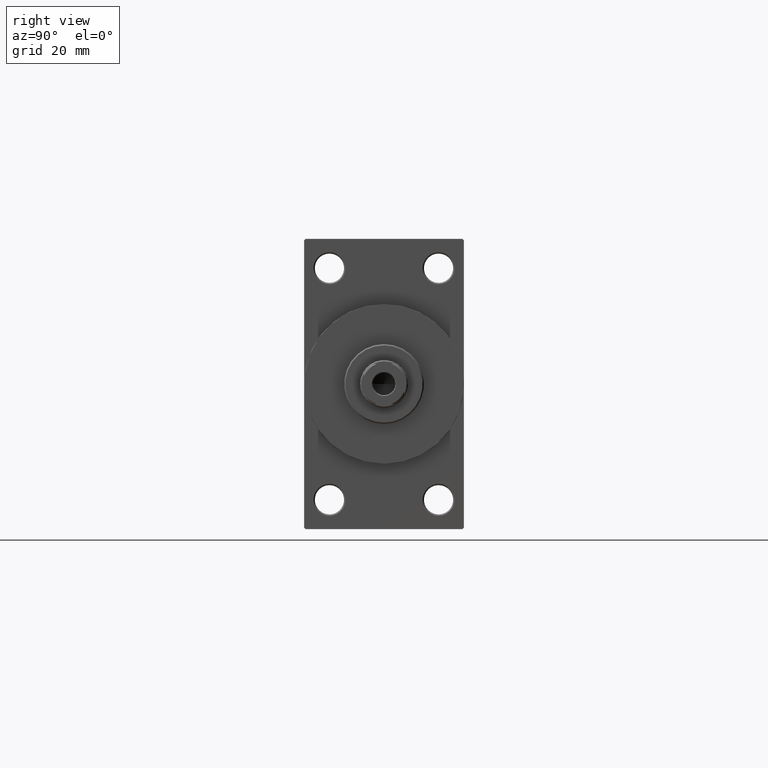
[diagram: clean part render]
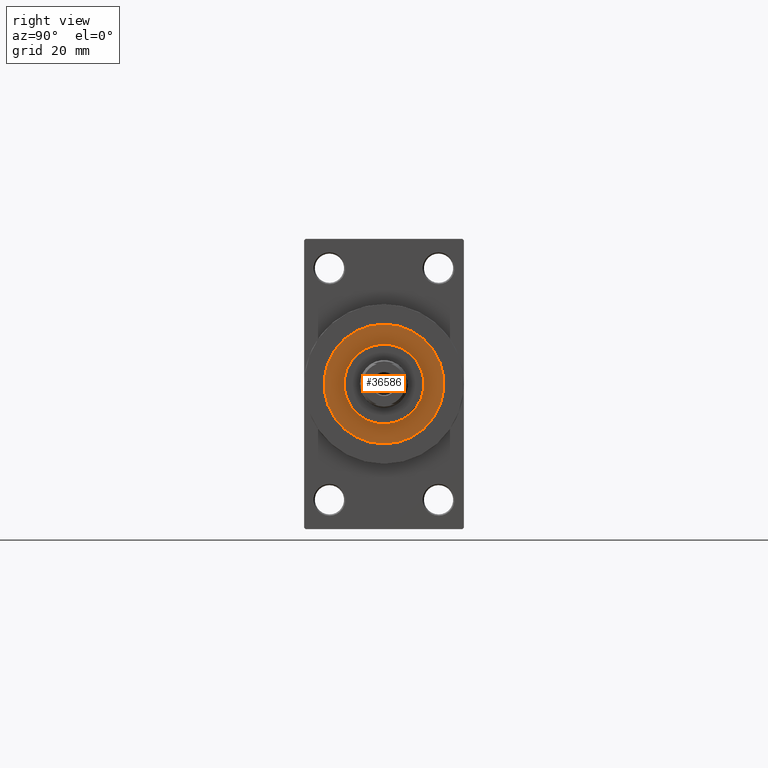
[diagram: same view with one face highlighted and labeled with its STEP entity id]
A machine part, right view. The second image highlights one B-rep face of the part: STEP entity #36586.
In plain terms, the highlighted planar face has unit normal (1, -0, -0).
Its self-contained STEP definition (entity closure, byte-faithful):
#502 = VERTEX_POINT ( 'NONE', #6699 ) ;
#960 = CARTESIAN_POINT ( 'NONE',  ( 22.50000000000000355, 2.755455298081545172E-15, 43.25999999999999801 ) ) ;
#1962 = AXIS2_PLACEMENT_3D ( 'NONE', #13277, #24262, #46230 ) ;
#2373 = EDGE_CURVE ( 'NONE', #41293, #14828, #17929, .T. ) ;
#2678 = CARTESIAN_POINT ( 'NONE',  ( 0.000000000000000000, 0.000000000000000000, 43.25999999999999801 ) ) ;
#6699 = CARTESIAN_POINT ( 'NONE',  ( -15.00000000000000000, 0.000000000000000000, 43.25999999999999801 ) ) ;
#7202 = AXIS2_PLACEMENT_3D ( 'NONE', #2678, #24892, #25355 ) ;
#7531 = VERTEX_POINT ( 'NONE', #14748 ) ;
#7853 = EDGE_CURVE ( 'NONE', #502, #7531, #29411, .T. ) ;
#8084 = ORIENTED_EDGE ( 'NONE', *, *, #41265, .T. ) ;
#8688 = AXIS2_PLACEMENT_3D ( 'NONE', #46264, #28108, #12824 ) ;
#12824 = DIRECTION ( 'NONE',  ( 1.000000000000000000, 0.000000000000000000, -0.000000000000000000 ) ) ;
#13277 = CARTESIAN_POINT ( 'NONE',  ( 0.000000000000000000, 0.000000000000000000, 43.25999999999999801 ) ) ;
#14330 = ORIENTED_EDGE ( 'NONE', *, *, #43527, .F. ) ;
#14748 = CARTESIAN_POINT ( 'NONE',  ( 15.00000000000000000, 1.836970198721029589E-15, 43.25999999999999801 ) ) ;
#14828 = VERTEX_POINT ( 'NONE', #23524 ) ;
#16357 = CIRCLE ( 'NONE', #7202, 22.50000000000000355 ) ;
#16405 = FACE_OUTER_BOUND ( 'NONE', #36266, .T. ) ;
#17929 = CIRCLE ( 'NONE', #18672, 22.50000000000000355 ) ;
#18672 = AXIS2_PLACEMENT_3D ( 'NONE', #21921, #25741, #40770 ) ;
#21921 = CARTESIAN_POINT ( 'NONE',  ( 0.000000000000000000, 0.000000000000000000, 43.25999999999999801 ) ) ;
#23524 = CARTESIAN_POINT ( 'NONE',  ( -22.50000000000000355, 0.000000000000000000, 43.25999999999999801 ) ) ;
#23578 = FACE_BOUND ( 'NONE', #30448, .T. ) ;
#24262 = DIRECTION ( 'NONE',  ( 0.000000000000000000, 0.000000000000000000, 1.000000000000000000 ) ) ;
#24892 = DIRECTION ( 'NONE',  ( 0.000000000000000000, 0.000000000000000000, 1.000000000000000000 ) ) ;
#25355 = DIRECTION ( 'NONE',  ( 1.000000000000000000, 0.000000000000000000, 0.000000000000000000 ) ) ;
#25584 = CIRCLE ( 'NONE', #40846, 15.00000000000000000 ) ;
#25741 = DIRECTION ( 'NONE',  ( 0.000000000000000000, 0.000000000000000000, 1.000000000000000000 ) ) ;
#28108 = DIRECTION ( 'NONE',  ( 0.000000000000000000, 0.000000000000000000, 1.000000000000000000 ) ) ;
#29411 = CIRCLE ( 'NONE', #1962, 15.00000000000000000 ) ;
#29533 = DIRECTION ( 'NONE',  ( 1.000000000000000000, 0.000000000000000000, 0.000000000000000000 ) ) ;
#30448 = EDGE_LOOP ( 'NONE', ( #41899, #14330 ) ) ;
#33358 = DIRECTION ( 'NONE',  ( 0.000000000000000000, 0.000000000000000000, 1.000000000000000000 ) ) ;
#36266 = EDGE_LOOP ( 'NONE', ( #8084, #45534 ) ) ;
#36586 = ADVANCED_FACE ( 'NONE', ( #23578, #16405 ), #41967, .T. ) ;
#40053 = CARTESIAN_POINT ( 'NONE',  ( 0.000000000000000000, 0.000000000000000000, 43.25999999999999801 ) ) ;
#40770 = DIRECTION ( 'NONE',  ( 1.000000000000000000, 0.000000000000000000, 0.000000000000000000 ) ) ;
#40846 = AXIS2_PLACEMENT_3D ( 'NONE', #40053, #33358, #29533 ) ;
#41265 = EDGE_CURVE ( 'NONE', #14828, #41293, #16357, .T. ) ;
#41293 = VERTEX_POINT ( 'NONE', #960 ) ;
#41899 = ORIENTED_EDGE ( 'NONE', *, *, #7853, .F. ) ;
#41967 = PLANE ( 'NONE',  #8688 ) ;
#43527 = EDGE_CURVE ( 'NONE', #7531, #502, #25584, .T. ) ;
#45534 = ORIENTED_EDGE ( 'NONE', *, *, #2373, .T. ) ;
#46230 = DIRECTION ( 'NONE',  ( 1.000000000000000000, 0.000000000000000000, 0.000000000000000000 ) ) ;
#46264 = CARTESIAN_POINT ( 'NONE',  ( 0.000000000000000000, 0.000000000000000000, 43.25999999999999801 ) ) ;